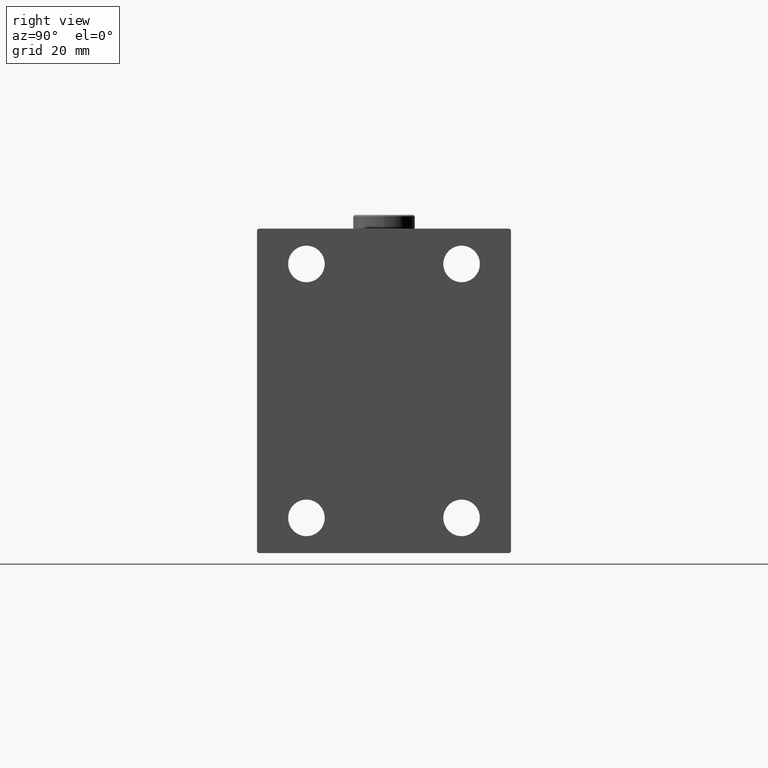
[diagram: clean part render]
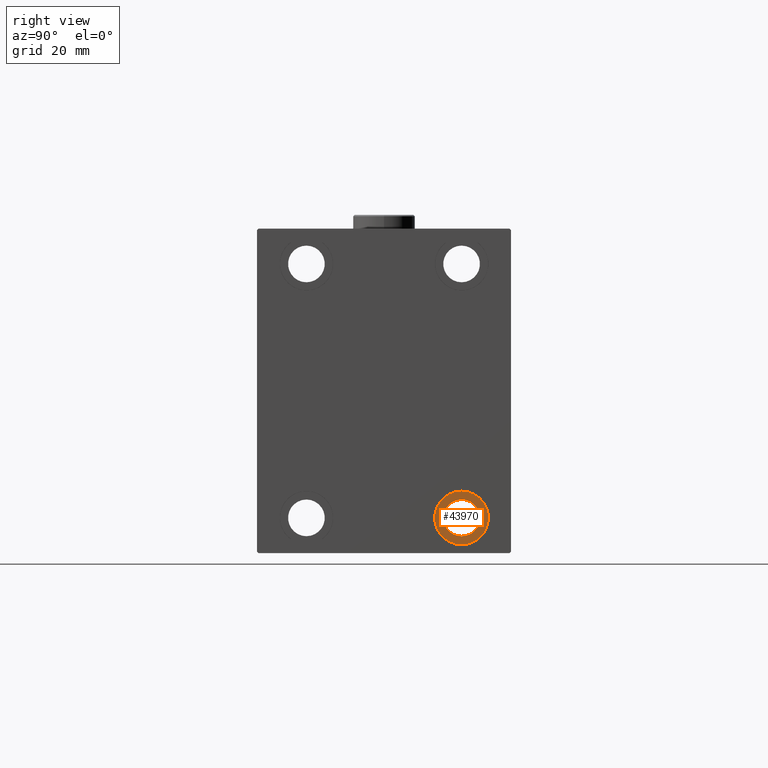
[diagram: same view with one face highlighted and labeled with its STEP entity id]
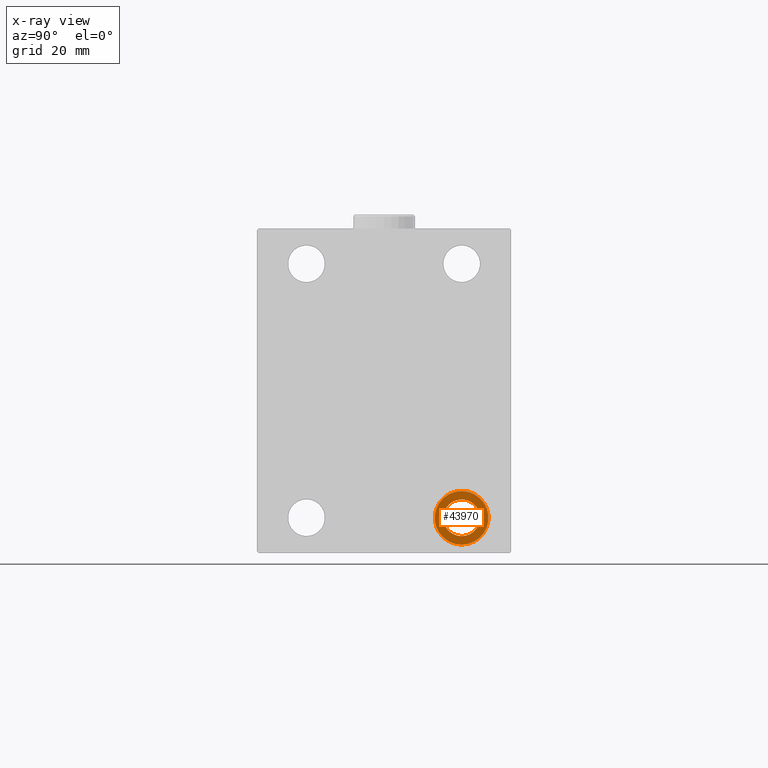
[diagram: x-ray of the same camera — body ghosted, the highlighted face saturated]
A machine part, right view. The second image highlights one B-rep face of the part: STEP entity #43970.
The next image is the same camera in x-ray: the body ghosted, the highlighted face saturated — about 0% of this face is hidden behind the body in this view.
In plain terms, the highlighted planar face has unit normal (1, 0, 0).
Its self-contained STEP definition (entity closure, byte-faithful):
#727 = DIRECTION ( 'NONE',  ( 0.000000000000000000, 0.000000000000000000, -1.000000000000000000 ) ) ;
#6216 = DIRECTION ( 'NONE',  ( 0.000000000000000000, 0.000000000000000000, -1.000000000000000000 ) ) ;
#6769 = EDGE_LOOP ( 'NONE', ( #7629, #26476 ) ) ;
#7629 = ORIENTED_EDGE ( 'NONE', *, *, #45039, .T. ) ;
#9314 = AXIS2_PLACEMENT_3D ( 'NONE', #39529, #18216, #32187 ) ;
#11043 = CARTESIAN_POINT ( 'NONE',  ( 185.0000000000000000, 27.49999999999998934, -51.49999999999998579 ) ) ;
#11116 = AXIS2_PLACEMENT_3D ( 'NONE', #20643, #42397, #27746 ) ;
#11976 = CARTESIAN_POINT ( 'NONE',  ( 185.0000000000000000, 27.49999999999998934, -38.49999999999998579 ) ) ;
#13534 = FACE_BOUND ( 'NONE', #6769, .T. ) ;
#13546 = CARTESIAN_POINT ( 'NONE',  ( 185.0000000000000000, 27.49999999999998934, -44.99999999999998579 ) ) ;
#13640 = CARTESIAN_POINT ( 'NONE',  ( 185.0000000000000000, 27.49999999999998934, -54.49999999999998579 ) ) ;
#14385 = DIRECTION ( 'NONE',  ( 0.000000000000000000, 0.000000000000000000, 1.000000000000000000 ) ) ;
#16278 = AXIS2_PLACEMENT_3D ( 'NONE', #13546, #41723, #6216 ) ;
#16626 = CARTESIAN_POINT ( 'NONE',  ( 185.0000000000000000, 27.49999999999998934, -35.49999999999998579 ) ) ;
#18216 = DIRECTION ( 'NONE',  ( -1.000000000000000000, -0.000000000000000000, -0.000000000000000000 ) ) ;
#19165 = ORIENTED_EDGE ( 'NONE', *, *, #27726, .F. ) ;
#19319 = EDGE_CURVE ( 'NONE', #40815, #40041, #20944, .T. ) ;
#19914 = CIRCLE ( 'NONE', #16278, 6.499999999999999112 ) ;
#20643 = CARTESIAN_POINT ( 'NONE',  ( 185.0000000000000000, 27.49999999999998934, -44.99999999999998579 ) ) ;
#20944 = CIRCLE ( 'NONE', #21714, 6.499999999999999112 ) ;
#21076 = AXIS2_PLACEMENT_3D ( 'NONE', #27288, #41262, #14385 ) ;
#21714 = AXIS2_PLACEMENT_3D ( 'NONE', #28221, #45186, #727 ) ;
#26476 = ORIENTED_EDGE ( 'NONE', *, *, #19319, .T. ) ;
#27288 = CARTESIAN_POINT ( 'NONE',  ( 185.0000000000000000, 27.49999999999998934, -44.99999999999998579 ) ) ;
#27726 = EDGE_CURVE ( 'NONE', #33080, #33182, #45175, .T. ) ;
#27746 = DIRECTION ( 'NONE',  ( 0.000000000000000000, 0.000000000000000000, 1.000000000000000000 ) ) ;
#28221 = CARTESIAN_POINT ( 'NONE',  ( 185.0000000000000000, 27.49999999999998934, -44.99999999999998579 ) ) ;
#28924 = EDGE_CURVE ( 'NONE', #33182, #33080, #29124, .T. ) ;
#29124 = CIRCLE ( 'NONE', #21076, 9.500000000000001776 ) ;
#32136 = ORIENTED_EDGE ( 'NONE', *, *, #28924, .F. ) ;
#32187 = DIRECTION ( 'NONE',  ( 0.000000000000000000, 0.000000000000000000, 1.000000000000000000 ) ) ;
#33036 = EDGE_LOOP ( 'NONE', ( #32136, #19165 ) ) ;
#33080 = VERTEX_POINT ( 'NONE', #16626 ) ;
#33182 = VERTEX_POINT ( 'NONE', #13640 ) ;
#39529 = CARTESIAN_POINT ( 'NONE',  ( 185.0000000000000000, 27.49999999999998934, -44.99999999999998579 ) ) ;
#40041 = VERTEX_POINT ( 'NONE', #11976 ) ;
#40815 = VERTEX_POINT ( 'NONE', #11043 ) ;
#41262 = DIRECTION ( 'NONE',  ( -1.000000000000000000, -0.000000000000000000, -0.000000000000000000 ) ) ;
#41723 = DIRECTION ( 'NONE',  ( -1.000000000000000000, -0.000000000000000000, -0.000000000000000000 ) ) ;
#41940 = FACE_OUTER_BOUND ( 'NONE', #33036, .T. ) ;
#42397 = DIRECTION ( 'NONE',  ( 1.000000000000000000, 0.000000000000000000, -0.000000000000000000 ) ) ;
#43970 = ADVANCED_FACE ( 'NONE', ( #41940, #13534 ), #45369, .T. ) ;
#45039 = EDGE_CURVE ( 'NONE', #40041, #40815, #19914, .T. ) ;
#45175 = CIRCLE ( 'NONE', #9314, 9.500000000000001776 ) ;
#45186 = DIRECTION ( 'NONE',  ( -1.000000000000000000, -0.000000000000000000, -0.000000000000000000 ) ) ;
#45369 = PLANE ( 'NONE',  #11116 ) ;